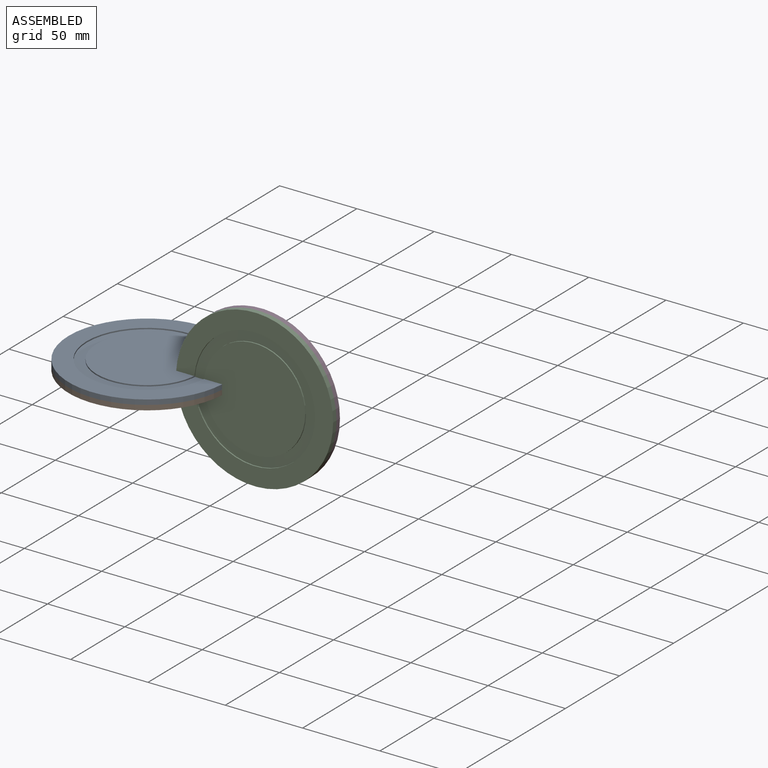
[diagram: assembled view]
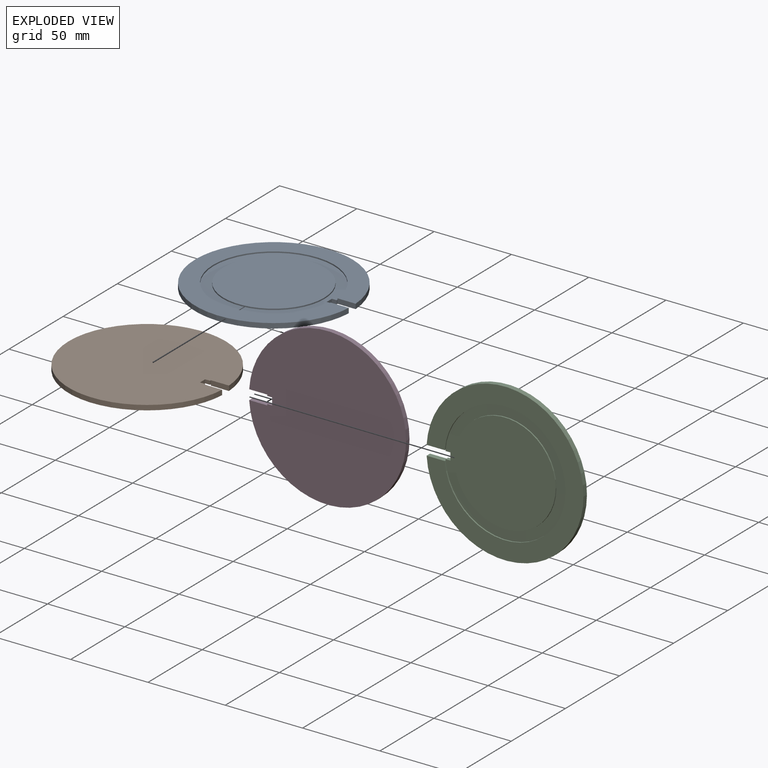
[diagram: exploded view]
GUIDED TOUR — MATED ASSEMBLY (Onshape document 1642b59bbd5ab7c68520edcf, AutoMate assembly 1642b59bbd5ab7c68520edcf_5b4b8e7355ebd08f8182febb_4a1188fc509b05de7276a865_default)

This assembly has 4 components, labeled P0..P3 below (a component is one placed occurrence of a part; the same part can appear more than once), held together by 3 mates. A mate is a constraint between two components; its type names the relative motion it leaves free:
  FASTENED — locks the two components together rigidly (no relative motion).
Axis/direction vectors are unit vectors and 'through' points are millimeter coordinates, both in the assembly's world frame.

MATES
  1. FASTENED "Fastened 2": P0 <-> P3, direction (1.000, 0.000, 0.000) through (23.52, -18.91, -53.82) mm
  2. FASTENED "Fastened 1": P2 <-> P3, direction (0.000, 1.000, 0.000) through (59.37, -18.91, -53.82) mm
  3. FASTENED "Fastened 1": P1 <-> P0, direction (0.000, 0.000, 1.000) through (-12.32, -18.91, -53.82) mm

ASSEMBLY ORDER
  1. P1 — the base component [order heuristic]
  2. P3 — core [order heuristic]
  3. P2 [order verified]
  4. P0 [order verified]
(P2 verified with a relaxed clearance tolerance: the source model stores slight part interference there.)
Order-tag legend:
  [order verified] — this step's position reverses a verified removal order: the component was checked to insert without passing through the ones already placed.
  [order heuristic] — the first 2 components form the assembly's core: parts whose collision-free extraction could not be verified, listed in mate-graph order.

Of the 4 components, 4 carry the full construction recipe — the FeatureScript program that regenerates the part's solid from scratch; the rest are supplied as boundary geometry only.
Each toured component is shown spotlighted twice — in the assembled view, then in the exploded view, where a leader line traces a displaced component back to its assembled socket (saturated green if recipe-attached, orange if geometry-only; every other component desaturated gray) — followed by its recipe or geometry summary and the mates that hold it.
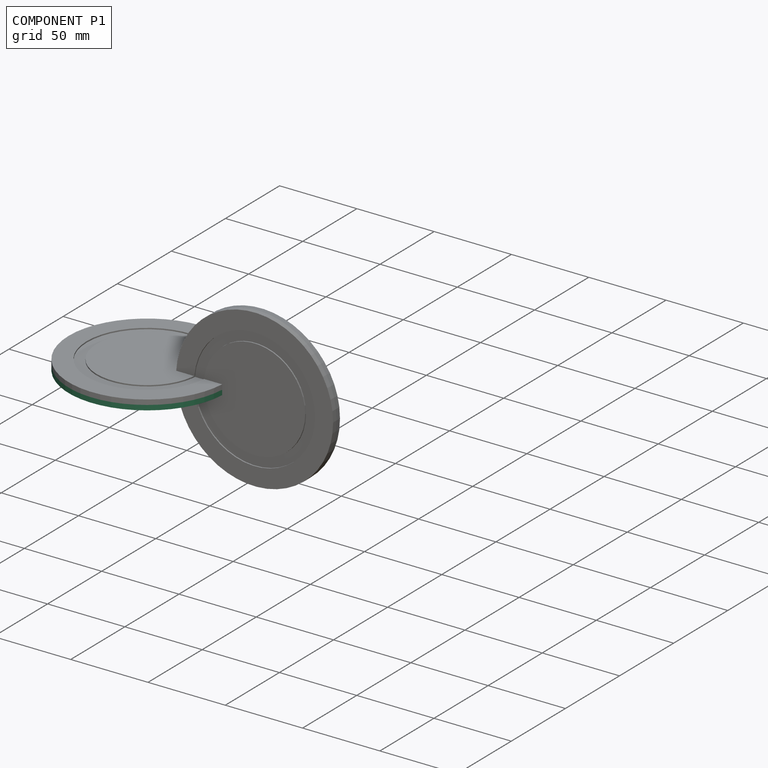
[diagram: component P1 — assembled]
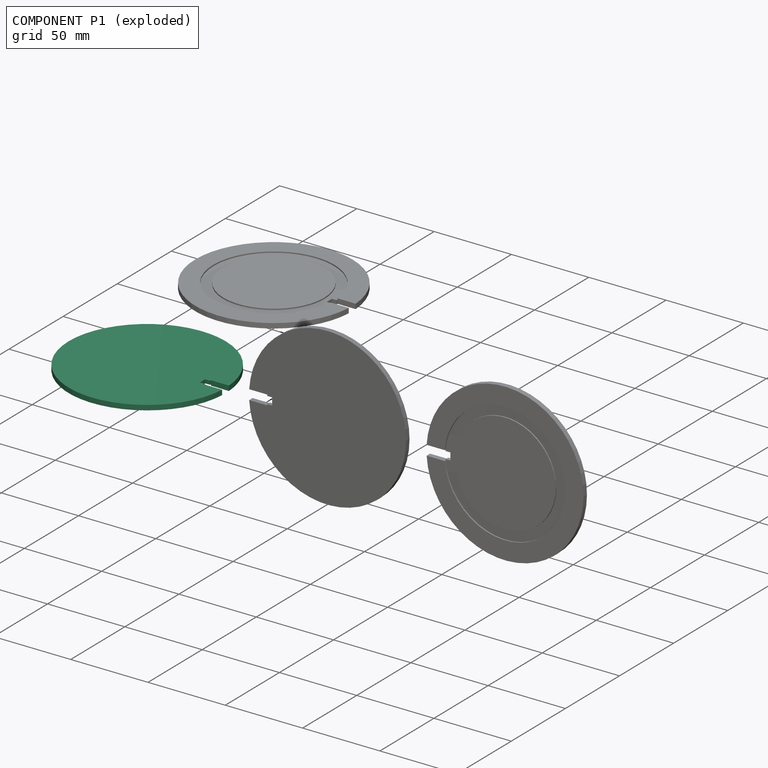
[diagram: component P1 — exploded]
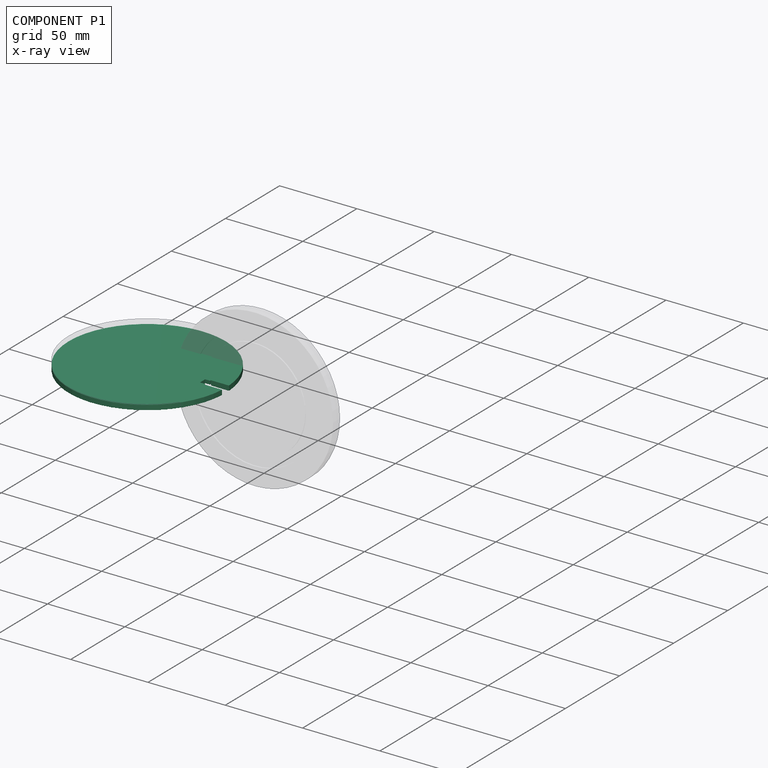
[diagram: component P1 — x-ray view]
COMPONENT P1 — same part as P0 (CADFS 00457820); its construction recipe is shown at P0.
Held by: FASTENED mate "Fastened 1" to P0.
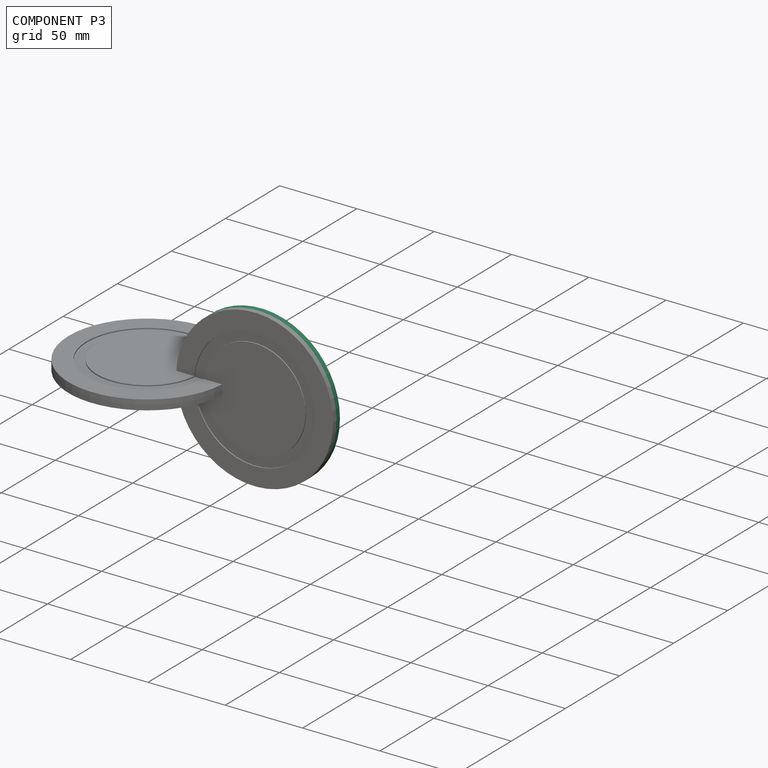
[diagram: component P3 — assembled]
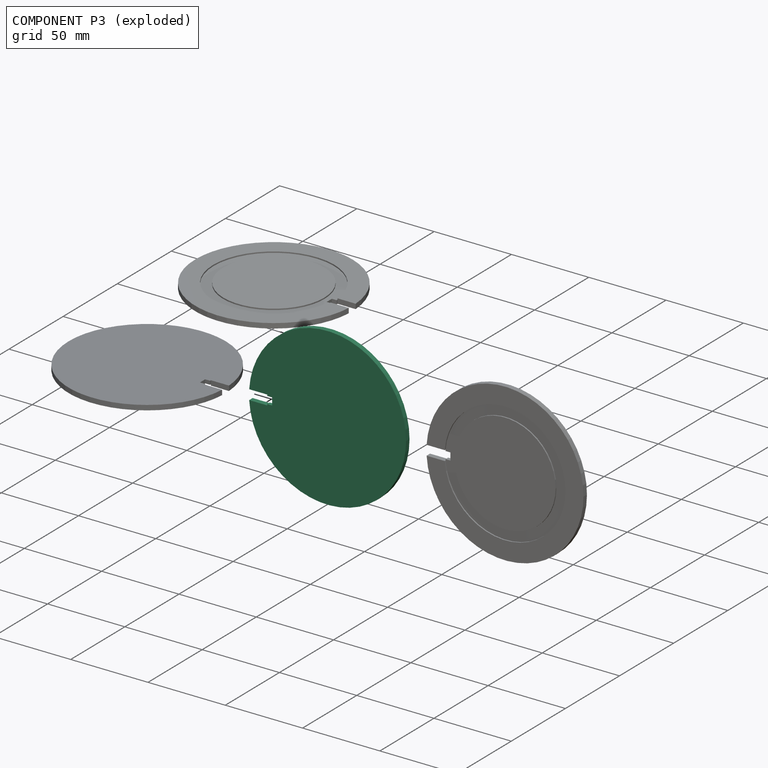
[diagram: component P3 — exploded]
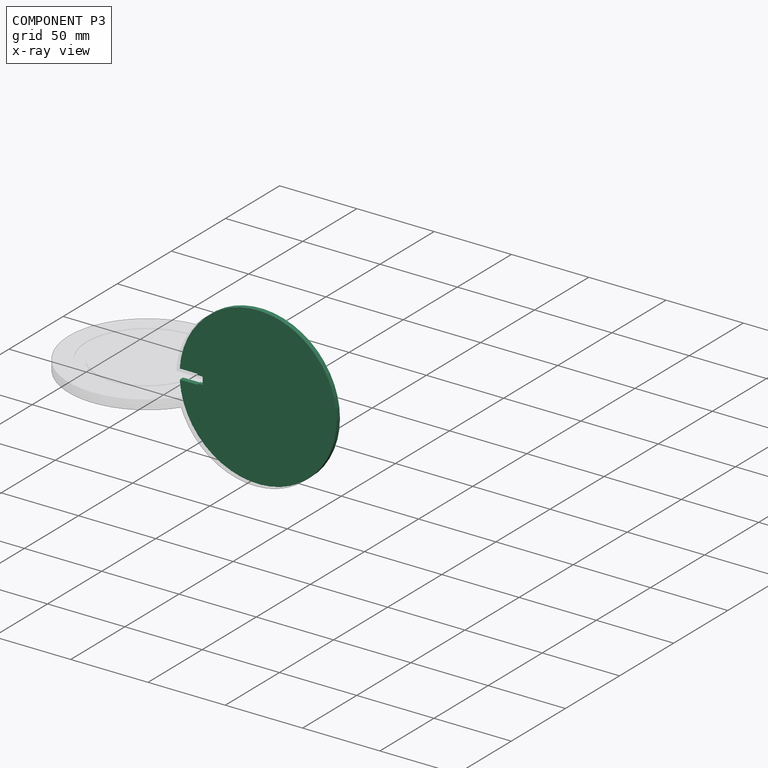
[diagram: component P3 — x-ray view]
COMPONENT P3 — same part as P0 (CADFS 00457820); its construction recipe is shown at P0.
Held by: FASTENED mate "Fastened 2" to P0; FASTENED mate "Fastened 1" to P2.
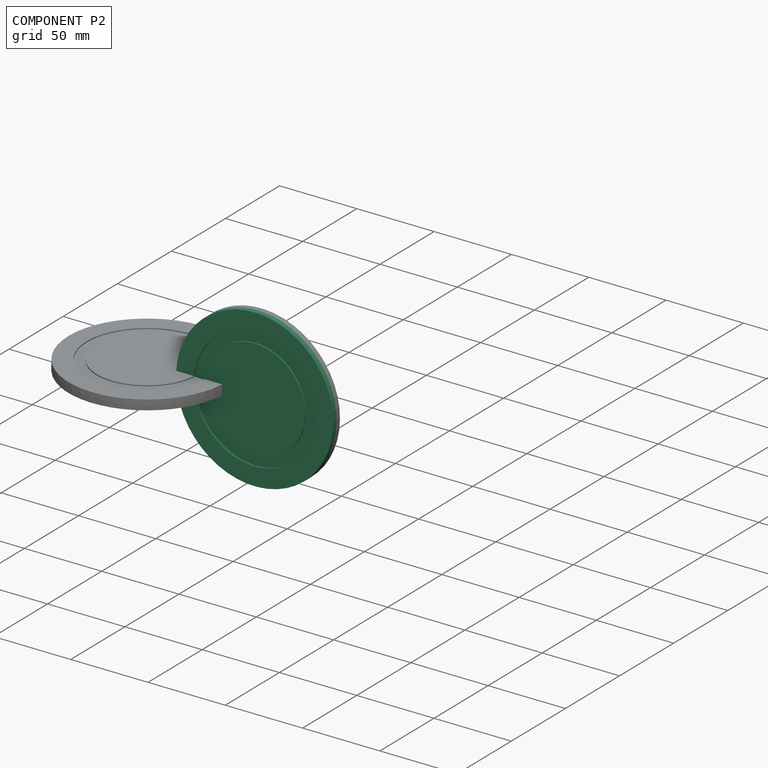
[diagram: component P2 — assembled]
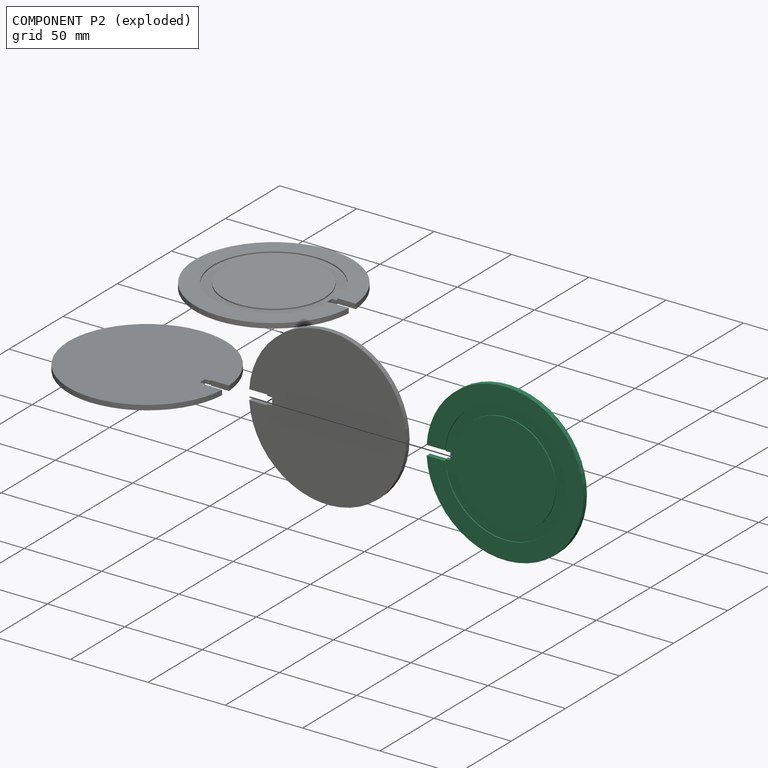
[diagram: component P2 — exploded]
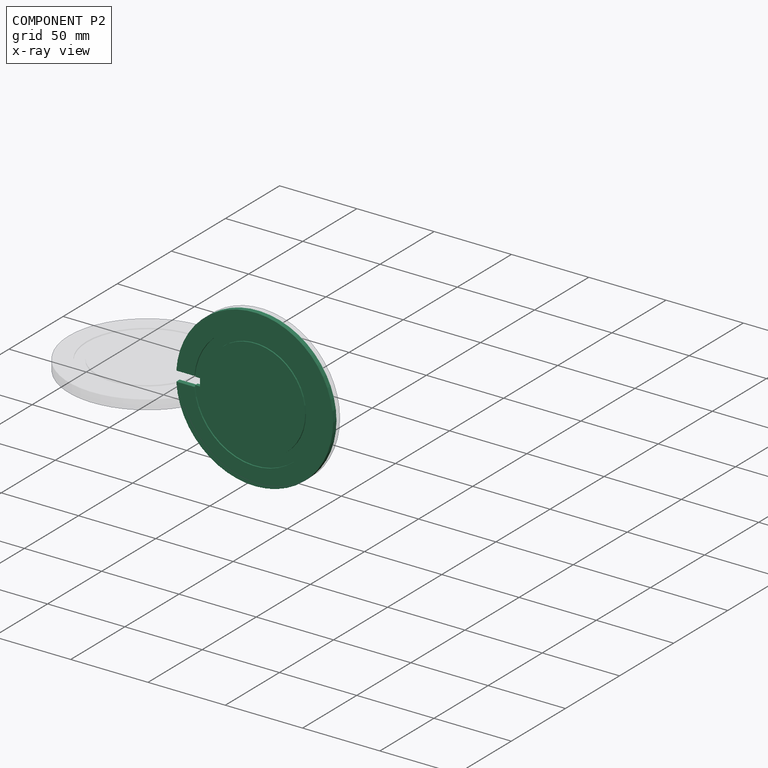
[diagram: component P2 — x-ray view]
COMPONENT P2 — same part as P0 (CADFS 00457820); its construction recipe is shown at P0.
Held by: FASTENED mate "Fastened 1" to P3.
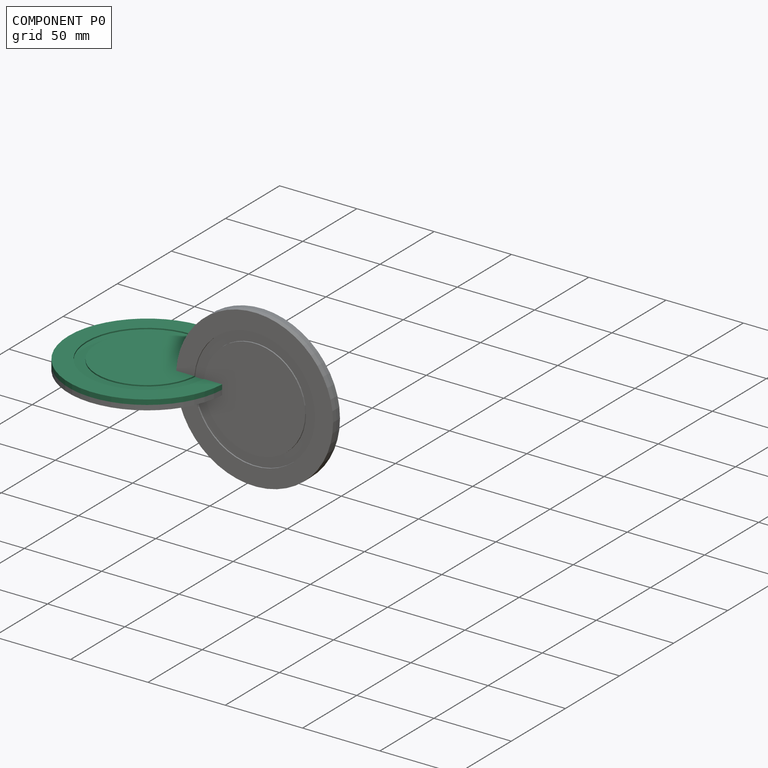
[diagram: component P0 — assembled]
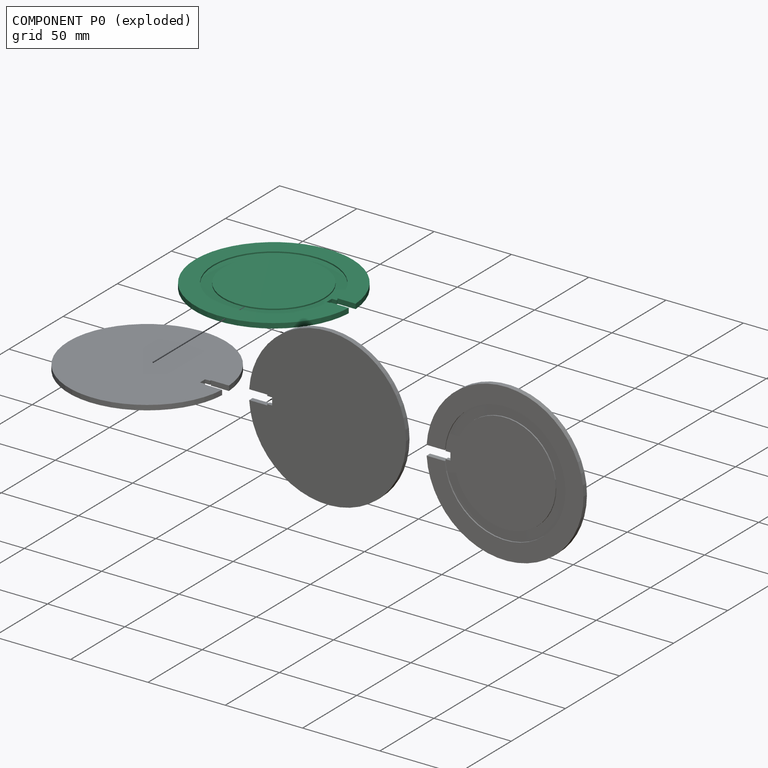
[diagram: component P0 — exploded]
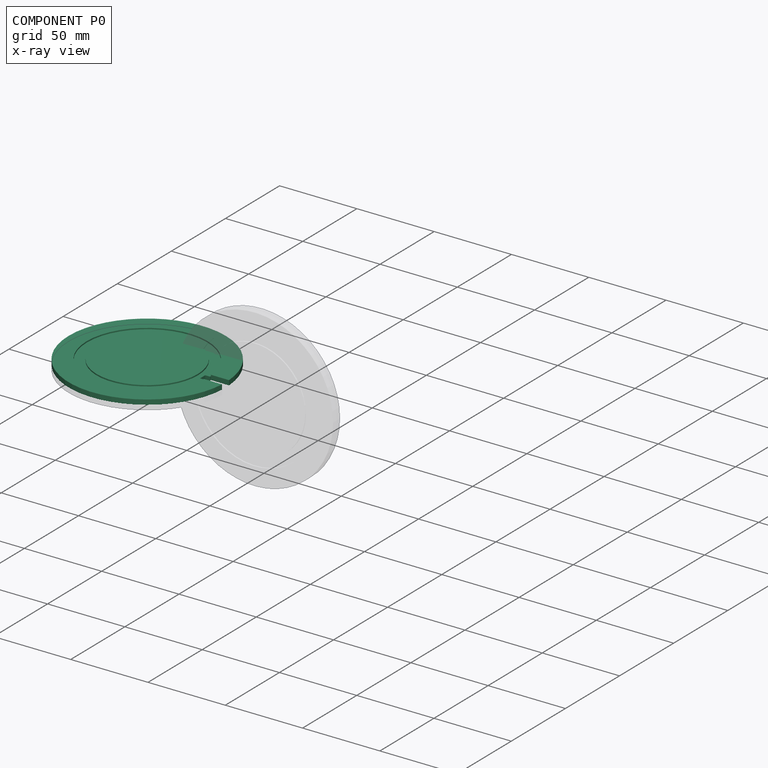
[diagram: component P0 — x-ray view]
COMPONENT P0 — recipe-attached (CADFS 00457820, mesh-verified: the recipe's output STEP matches this component's geometry to below the mesh-comparison resolution (tessellation chordal tolerance ~0.215 mm)).
Held by: FASTENED mate "Fastened 2" to P3; FASTENED mate "Fastened 1" to P1.
Construction recipe (FeatureScript — the CAD program that rebuilds this solid; sketch coordinates are in the units given by the * unit suffixes, e.g. mm):

FeatureScript 1511;
import(path : "onshape/std/geometry.fs", version : "1511.0");
import(path : "onshape/std/common.fs", version : "1511.0");
const mm = millimeter;
const VERTEX = EntityType.VERTEX;
const EDGE = EntityType.EDGE;
const FACE = EntityType.FACE;
const BODY = EntityType.BODY;
function v(x, y){return vector(x, y);}
function OD(order){return orderDisambiguation(order);}
function OSD(set){return originalSetDisambiguation(set);}
function TD(topology){return topologyDisambiguation(topology);}
function TDD(query){return trueDependencyDisambiguation(query);}
function sQuery(a, b, c) {return sketchEntityQuery(a, b, c);}

annotation { "Feature Type Name" : "Feature", "Feature Type Description" : "" }
export const myFeature = defineFeature(function(context is Context, id is Id, definition is map)
    precondition{}
    {
        {
            var Q0;
            Q0=qCreatedBy(makeId("Top.planeOp"),FACE);
            var sketch = newSketch(context, id + "F0", { "sketchPlane" : qUnion([Q0])});
            skArc(sketch, "E0", {"start": v(50.7, 3.18) * mm, "mid": v(-50.8, 0) * mm, "end": v(50.7, -3.17) * mm});
            skLineSegment(sketch, "E1.0", {"start": v(50.7, 3.18) * mm, "end": v(35.85, 3.17) * mm});
            skLineSegment(sketch, "E2.0", {"start": v(50.7, -3.17) * mm, "end": v(35.85, -3.18) * mm});
            skLineSegment(sketch, "E3", {"start": v(35.85, 3.17) * mm, "end": v(35.85, -3.18) * mm});
            skPoint(sketch, "E4.start.orphan", {"position": v(50.8, 0) * mm});
            skLineSegment(sketch, "E5", {"start": v(50.8, 0) * mm, "end": v(0, 0) * mm, "construction": true});
            skSolve(sketch);
        }
        {
            var Q0;
            Q0=makeQuery(id+"F0.imprint","IMPRINT",FACE,{"disambiguationData":[TD([[makeQuery(id+"F0.imprint","IMPRINT",EDGE,{"derivedFrom":sQuery(id+"F0.wireOp",EDGE,"E0")}),1.0]])]});
            extrude(context, id + "F1", {"entities" : qUnion([Q0]), "depth" : 3.17 * mm});
        }
        {
            var Q0;
            Q0=makeQuery(id+"F1.opExtrude","CAP_FACE",FACE,{"disambiguationData":[OSD([sQuery(id+"F0.wireOp",EDGE,"E0"),sQuery(id+"F0.wireOp",EDGE,"E1.0"),sQuery(id+"F0.wireOp",EDGE,"E2.0"),sQuery(id+"F0.wireOp",EDGE,"E3")])],"isStart":false});
            var sketch = newSketch(context, id + "F2", { "sketchPlane" : qUnion([Q0])});
            skArc(sketch, "E6.0", {"start": v(39.08, 1.22) * mm, "mid": v(-39.1, 0) * mm, "end": v(39.08, -1.22) * mm});
            skCircle(sketch, "E7", {"center": v(0, 0) * mm, "radius": 32.75 * mm});
            skSolve(sketch);
        }
        {
            var Q0;
            {var subQ0=sQuery(id+"F2.wireOp",EDGE,"7e539c9c-dfe4-4d2e-a318-fa9bffde27fd.0");var subQ1=makeQuery(id+"F1.opExtrude","CAP_EDGE",EDGE,{"disambiguationData":[OSD([sQuery(id+"F0.wireOp",EDGE,"E1.0")])],"isStart":false});var subQ2=makeQuery(id+"F2.imprint","INTERSECT",VERTEX,{"derivedFrom":[subQ1,subQ0]});Q0=makeQuery(id+"F2.imprint","IMPRINT",FACE,{"disambiguationData":[TD([[makeQuery(id+"F2.imprint","IMPRINT",EDGE,{"disambiguationData":[TD([[subQ2,-1.0]])],"derivedFrom":subQ0}),-1.0]])]});}
            var Q1;
            Q1=makeQuery(id+"F2.imprint","IMPRINT",FACE,{"disambiguationData":[TD([[makeQuery(id+"F2.imprint","IMPRINT",EDGE,{"derivedFrom":sQuery(id+"F2.wireOp",EDGE,"E7")}),-1.0]])]});
            extrude(context, id + "F3", {"entities" : qUnion([Q0, Q1]), "operationType" : NewBodyOperationType.REMOVE, "oppositeDirection" : true, "depth" : 0.8 * mm});
        }
        {
            var Q0;
            Q0=makeQuery(id+"F3.boolean.opBoolean","COPY",FACE,{"derivedFrom":makeQuery(id+"F3.opExtrude","CAP_FACE",FACE,{"disambiguationData":[OSD([sQuery(id+"F0.wireOp",EDGE,"E1.0"),sQuery(id+"F0.wireOp",EDGE,"E2.0"),sQuery(id+"F0.wireOp",EDGE,"E3"),sQuery(id+"F2.wireOp",EDGE,"E6.0"),sQuery(id+"F2.wireOp",EDGE,"E7")])],"isStart":false})});
            var sketch = newSketch(context, id + "F4", { "sketchPlane" : qUnion([Q0])});
            skLineSegment(sketch, "E8.0", {"start": v(39.02, 2.38) * mm, "end": v(35.85, 2.38) * mm});
            skLineSegment(sketch, "E9.0", {"start": v(39.02, -2.38) * mm, "end": v(35.85, -2.38) * mm});
            skArc(sketch, "E10", {"start": v(38.97, -3.17) * mm, "mid": v(39, -2.78) * mm, "end": v(39.02, -2.38) * mm});
            skArc(sketch, "E11.trimOffspring", {"start": v(39.02, 2.38) * mm, "mid": v(39, 2.78) * mm, "end": v(38.97, 3.18) * mm});
            skLineSegment(sketch, "E12.0", {"start": v(35.85, 3.17) * mm, "end": v(35.85, -3.18) * mm});
            skSolve(sketch);
        }
        {
            var Q0;
            {var subQ0=sQuery(id+"F4.wireOp",EDGE,"E9.0");Q0=makeQuery(id+"F4.imprint","IMPRINT",FACE,{"disambiguationData":[TD([[makeQuery(id+"F4.imprint","IMPRINT",EDGE,{"derivedFrom":subQ0}),1.0]])]});}
            var Q1;
            {var subQ0=sQuery(id+"F4.wireOp",EDGE,"E8.0");Q1=makeQuery(id+"F4.imprint","IMPRINT",FACE,{"disambiguationData":[TD([[makeQuery(id+"F4.imprint","IMPRINT",EDGE,{"derivedFrom":subQ0}),-1.0]])]});}
            var Q2;
            Q2=makeQuery(id+"F1.opExtrude","CAP_FACE",FACE,{"disambiguationData":[OSD([sQuery(id+"F0.wireOp",EDGE,"E0"),sQuery(id+"F0.wireOp",EDGE,"E1.0"),sQuery(id+"F0.wireOp",EDGE,"E2.0"),sQuery(id+"F0.wireOp",EDGE,"E3")])],"isStart":true});
            extrude(context, id + "F5", {"entities" : qUnion([Q0, Q1]), "operationType" : NewBodyOperationType.ADD, "endBound" : BoundingType.UP_TO_SURFACE, "oppositeDirection" : true, "endBoundEntityFace" : qUnion([Q2]), "depth" : 25.4 * mm});
        }
    });
PROVENANCE & LICENSES
Assembly (occurrences, transforms, mates, per-part STEP geometry): AutoMate dataset, Zenodo record 7776208, CC0.
Construction recipes: CADFS (HuggingFace VladPyatov/CADFS, CC-BY-4.0, layered over the ABC dataset), FeatureScript reconstruction programs keyed by ABC model id.
Join: ABC meta listings map ABC model id -> Onshape documentId; within a shared document, parts are matched by geometric signature (bounding-box dims + volume at 0.1% relative tolerance, exact B-rep face/solid counts).
Verification: 4 of this assembly's 4 components carry a recipe attachment, and every attachment is mesh-verified: the CADFS STEP and the AutoMate member STEP were compared as meshes in their shared local frame (symmetric sampled-point-to-mesh distance); worst across the 4 attachments: below the mesh-comparison resolution (tessellation chordal tolerance ~0.215 mm) on a 144 mm part.
Renders: orthographic iso camera (az 35 / el 25); the floor grid conveys scale (grid pitch printed in each image; no ruler). In the exploded view each component is displaced by its stored offset vector: the offsets alone carry the explosion direction (mate normal/axis signs are not orientation cues and do not encode it), and separation distances are assigned per mate-chain, not proportionally to assembly-order depth.
